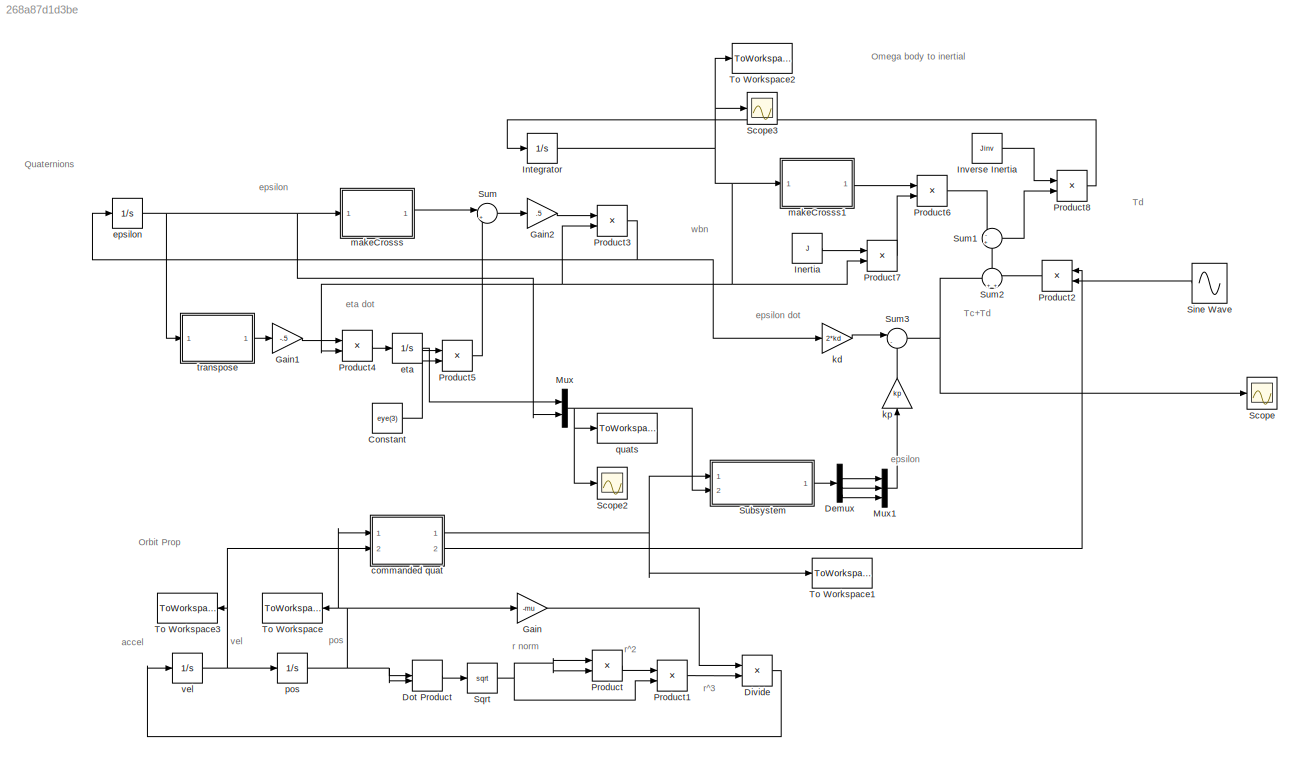
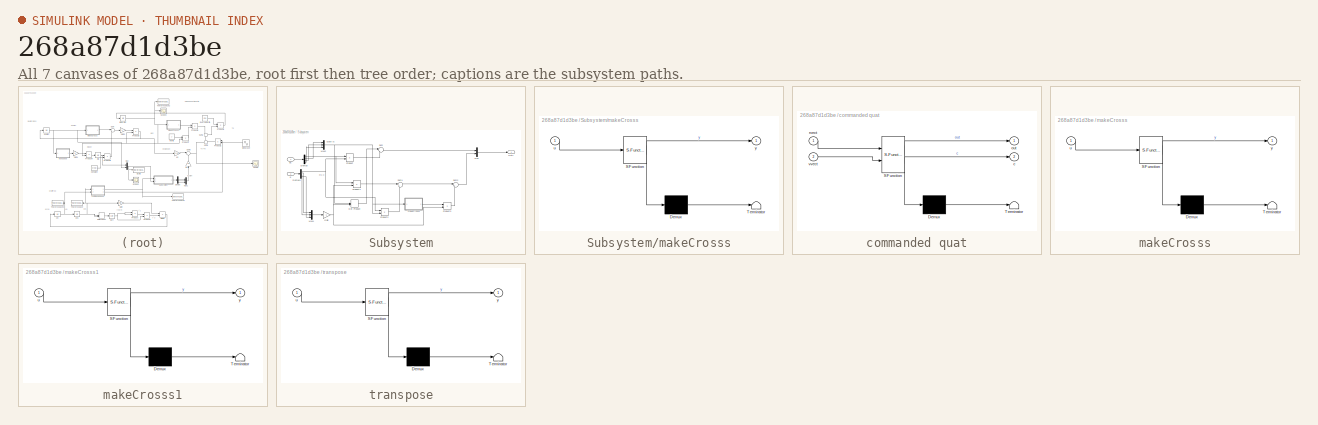
[diagram: thumbnail index - all 7 canvases of the model, root first then tree order]
MODEL slx_268a87d1d3be
KIND model
CONFIG AbsTol = 1e-8
CONFIG FixedStep = auto
CONFIG MaxStep = auto
CONFIG MinStep = auto
CONFIG RelTol = 1e-8
CONFIG SampleTimeConstraint = Unconstrained
CONFIG Solver = ode45
CONFIG SolverMode = Auto
CONFIG SolverName = ode45
CONFIG StartTime = 0.0
CONFIG StopTime = tprop
BLOCK [Constant] Constant
  Value = eye(3)
BLOCK [Demux] Demux
  DisplayOption = bar
  Ports = [1, 4]
BLOCK [Product] Divide
  InputSameDT = off
  Inputs = */
  OutDataTypeStr = Inherit: Inherit via internal rule
  Ports = [2, 1]
  RndMeth = Floor
  SaturateOnIntegerOverflow = off
BLOCK [DotProduct] Dot Product
  OutDataTypeStr = Inherit: Inherit via internal rule
BLOCK [Gain] Gain
  Gain = -mu
  OutDataTypeStr = Inherit: Inherit via internal rule
  ParamDataTypeStr = Inherit: Inherit via internal rule
  SaturateOnIntegerOverflow = off
BLOCK [Gain] Gain1
  Gain = -.5
  OutDataTypeStr = Inherit: Inherit via internal rule
  ParamDataTypeStr = Inherit: Inherit via internal rule
  SaturateOnIntegerOverflow = off
BLOCK [Gain] Gain2
  Gain = .5
  OutDataTypeStr = Inherit: Inherit via internal rule
  ParamDataTypeStr = Inherit: Inherit via internal rule
  SaturateOnIntegerOverflow = off
BLOCK [Constant] Inertia
  Value = J
BLOCK [Integrator] Integrator
  InitialCondition = wbn0
  Ports = [1, 1]
BLOCK [Constant] Inverse Inertia
  Value = Jinv
BLOCK [Mux] Mux
  DisplayOption = bar
  Inputs = 2
  Ports = [2, 1]
BLOCK [Mux] Mux1
  DisplayOption = bar
  Inputs = 3
  Ports = [3, 1]
BLOCK [Product] Product
  InputSameDT = off
  OutDataTypeStr = Inherit: Inherit via internal rule
  Ports = [2, 1]
  RndMeth = Floor
  SaturateOnIntegerOverflow = off
BLOCK [Product] Product1
  InputSameDT = off
  OutDataTypeStr = Inherit: Inherit via internal rule
  Ports = [2, 1]
  RndMeth = Floor
  SaturateOnIntegerOverflow = off
BLOCK [Product] Product2
  InputSameDT = off
  Multiplication = Matrix(*)
  OutDataTypeStr = Inherit: Inherit via internal rule
  Ports = [2, 1]
  RndMeth = Floor
  SaturateOnIntegerOverflow = off
BLOCK [Product] Product3
  InputSameDT = off
  Multiplication = Matrix(*)
  OutDataTypeStr = Inherit: Inherit via internal rule
  Ports = [2, 1]
  RndMeth = Floor
  SaturateOnIntegerOverflow = off
BLOCK [Product] Product4
  InputSameDT = off
  Multiplication = Matrix(*)
  OutDataTypeStr = Inherit: Inherit via internal rule
  Ports = [2, 1]
  RndMeth = Floor
  SaturateOnIntegerOverflow = off
BLOCK [Product] Product5
  InputSameDT = off
  OutDataTypeStr = Inherit: Inherit via internal rule
  Ports = [2, 1]
  RndMeth = Floor
  SaturateOnIntegerOverflow = off
BLOCK [Product] Product6
  InputSameDT = off
  Multiplication = Matrix(*)
  OutDataTypeStr = Inherit: Inherit via internal rule
  Ports = [2, 1]
  RndMeth = Floor
  SaturateOnIntegerOverflow = off
BLOCK [Product] Product7
  InputSameDT = off
  Multiplication = Matrix(*)
  OutDataTypeStr = Inherit: Inherit via internal rule
  Ports = [2, 1]
  RndMeth = Floor
  SaturateOnIntegerOverflow = off
BLOCK [Product] Product8
  InputSameDT = off
  Multiplication = Matrix(*)
  OutDataTypeStr = Inherit: Inherit via internal rule
  Ports = [2, 1]
  RndMeth = Floor
  SaturateOnIntegerOverflow = off
BLOCK [Scope] Scope
  Ports = [1]
  ScopeSpecificationString = Simulink.scopes.TimeScopeBlockCfg('CurrentConfiguration', extmgr.ConfigurationSet(extmgr.Configuration('Core','General UI',true),extmgr.Configuration('Core','Source UI',true),extmgr.Configuration('Sources','WiredSimulink',true,'DataLoggingVariableName','ScopeData1','DataLoggingLimitDataPoints',true,'DataLoggingSaveFormat','Array','DataLoggingDecimation','1','DataLoggingDecimateData',true),extmgr.C...<+1585ch>
BLOCK [Scope] Scope2
  Ports = [1]
  ScopeSpecificationString = Simulink.scopes.TimeScopeBlockCfg('CurrentConfiguration', extmgr.ConfigurationSet(extmgr.Configuration('Core','General UI',true),extmgr.Configuration('Core','Source UI',true),extmgr.Configuration('Sources','WiredSimulink',true,'DataLoggingVariableName','ScopeData1','DataLoggingLimitDataPoints',true,'DataLoggingSaveFormat','Array','DataLoggingDecimation','1','DataLoggingDecimateData',true),extmgr.C...<+1596ch>
BLOCK [Scope] Scope3
  Ports = [1]
  ScopeSpecificationString = Simulink.scopes.TimeScopeBlockCfg('CurrentConfiguration', extmgr.ConfigurationSet(extmgr.Configuration('Core','General UI',true),extmgr.Configuration('Core','Source UI',true),extmgr.Configuration('Sources','WiredSimulink',true,'DataLoggingVariableName','ScopeData2'),extmgr.Configuration('Visuals','Time Domain',true,'SerializedDisplays',{struct('MinYLimReal','0.00316','MaxYLimReal','0.17194','YLabe...<+1472ch>
BLOCK [Sin] Sine Wave
  Amplitude = [0; 5e-7; 0]
  Frequency = 3*n
  Ports = [0, 1]
  SampleTime = 0
BLOCK [Sqrt] Sqrt
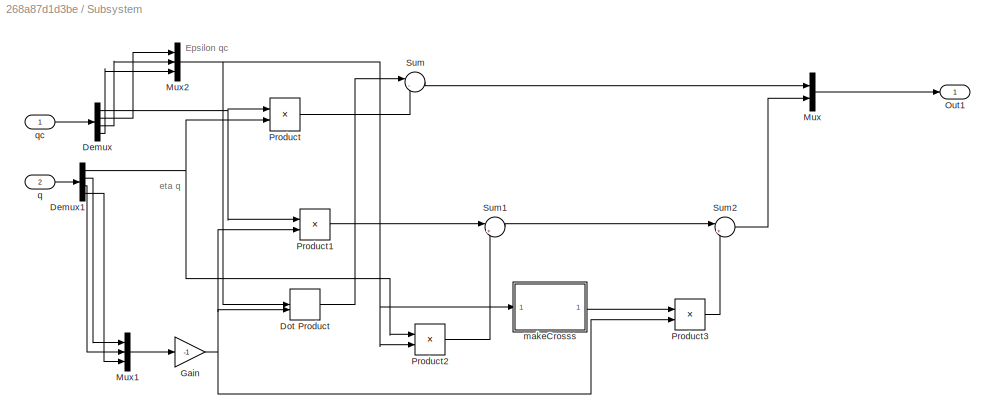
BLOCK [SubSystem] Subsystem
  Ports = [2, 1]
  RequestExecContextInheritance = off
  Variant = off
BLOCK [Demux] Subsystem/Demux
  DisplayOption = bar
  Ports = [1, 4]
BLOCK [Demux] Subsystem/Demux1
  DisplayOption = bar
  Ports = [1, 4]
BLOCK [DotProduct] Subsystem/Dot Product
  OutDataTypeStr = Inherit: Inherit via internal rule
BLOCK [Gain] Subsystem/Gain
  Gain = -1
  OutDataTypeStr = Inherit: Inherit via internal rule
  ParamDataTypeStr = Inherit: Inherit via internal rule
  SaturateOnIntegerOverflow = off
BLOCK [Mux] Subsystem/Mux
  DisplayOption = bar
  Inputs = 2
  Ports = [2, 1]
BLOCK [Mux] Subsystem/Mux1
  DisplayOption = bar
  Inputs = 3
  Ports = [3, 1]
BLOCK [Mux] Subsystem/Mux2
  DisplayOption = bar
  Inputs = 3
  Ports = [3, 1]
BLOCK [Outport] Subsystem/Out1
  IconDisplay = Port number
BLOCK [Product] Subsystem/Product
  InputSameDT = off
  OutDataTypeStr = Inherit: Inherit via internal rule
  Ports = [2, 1]
  RndMeth = Floor
  SaturateOnIntegerOverflow = off
BLOCK [Product] Subsystem/Product1
  InputSameDT = off
  OutDataTypeStr = Inherit: Inherit via internal rule
  Ports = [2, 1]
  RndMeth = Floor
  SaturateOnIntegerOverflow = off
BLOCK [Product] Subsystem/Product2
  InputSameDT = off
  OutDataTypeStr = Inherit: Inherit via internal rule
  Ports = [2, 1]
  RndMeth = Floor
  SaturateOnIntegerOverflow = off
BLOCK [Product] Subsystem/Product3
  InputSameDT = off
  Multiplication = Matrix(*)
  OutDataTypeStr = Inherit: Inherit via internal rule
  Ports = [2, 1]
  RndMeth = Floor
  SaturateOnIntegerOverflow = off
BLOCK [Sum] Subsystem/Sum
  IconShape = round
  InputSameDT = off
  Inputs = |-+
  OutDataTypeStr = Inherit: Inherit via internal rule
  Ports = [2, 1]
  SaturateOnIntegerOverflow = off
BLOCK [Sum] Subsystem/Sum1
  IconShape = round
  InputSameDT = off
  Inputs = |++
  OutDataTypeStr = Inherit: Inherit via internal rule
  Ports = [2, 1]
  SaturateOnIntegerOverflow = off
BLOCK [Sum] Subsystem/Sum2
  IconShape = round
  InputSameDT = off
  Inputs = |++
  OutDataTypeStr = Inherit: Inherit via internal rule
  Ports = [2, 1]
  SaturateOnIntegerOverflow = off
BLOCK [SubSystem] Subsystem/makeCrosss
  ErrorFcn = Stateflow.Translate.translate
  PermitHierarchicalResolution = ExplicitOnly
  Ports = [1, 1]
  RequestExecContextInheritance = off
  SFBlockType = MATLAB Function
  TreatAsAtomicUnit = on
  Variant = off
BLOCK [Demux] Subsystem/makeCrosss/ Demux 
  Outputs = 1
  Ports = [1, 1]
BLOCK [S-Function] Subsystem/makeCrosss/ SFunction 
  EnableBusSupport = on
  FunctionName = sf_sfun
  PortCounts = [1 2]
  Ports = [1, 2]
  SFunctionDeploymentMode = off
  Tag = Stateflow S-Function satPropWThrusterControlLinear 2
BLOCK [Terminator] Subsystem/makeCrosss/ Terminator 
BLOCK [Inport] Subsystem/makeCrosss/u
  IconDisplay = Port number
BLOCK [Outport] Subsystem/makeCrosss/y
  IconDisplay = Port number
BLOCK [Inport] Subsystem/q
  IconDisplay = Port number
  Port = 2
BLOCK [Inport] Subsystem/qc
  IconDisplay = Port number
BLOCK [Sum] Sum
  IconShape = round
  InputSameDT = off
  Inputs = |++
  OutDataTypeStr = Inherit: Inherit via internal rule
  Ports = [2, 1]
  SaturateOnIntegerOverflow = off
BLOCK [Sum] Sum1
  IconShape = round
  InputSameDT = off
  Inputs = -+
  OutDataTypeStr = Inherit: Inherit via internal rule
  Ports = [2, 1]
  SaturateOnIntegerOverflow = off
BLOCK [Sum] Sum2
  IconShape = round
  InputSameDT = off
  OutDataTypeStr = Inherit: Inherit via internal rule
  Ports = [2, 1]
  SaturateOnIntegerOverflow = off
BLOCK [Sum] Sum3
  IconShape = round
  InputSameDT = off
  Inputs = |--
  OutDataTypeStr = Inherit: Inherit via internal rule
  Ports = [2, 1]
  SaturateOnIntegerOverflow = off
BLOCK [ToWorkspace] To Workspace
  FixptAsFi = on
  MaxDataPoints = inf
  Ports = [1]
  SampleTime = -1
  Save2DSignal = 3-D array (concatenate along third dimension)
  SaveFormat = Timeseries
  VariableName = pos
BLOCK [ToWorkspace] To Workspace1
  FixptAsFi = on
  MaxDataPoints = inf
  Ports = [1]
  SampleTime = -1
  Save2DSignal = 3-D array (concatenate along third dimension)
  SaveFormat = Timeseries
  VariableName = q_command
BLOCK [ToWorkspace] To Workspace2
  FixptAsFi = on
  MaxDataPoints = inf
  Ports = [1]
  SampleTime = -1
  Save2DSignal = 3-D array (concatenate along third dimension)
  SaveFormat = Timeseries
  VariableName = wbn
BLOCK [ToWorkspace] To Workspace3
  FixptAsFi = on
  MaxDataPoints = inf
  Ports = [1]
  SampleTime = -1
  Save2DSignal = 3-D array (concatenate along third dimension)
  SaveFormat = Timeseries
  VariableName = vel
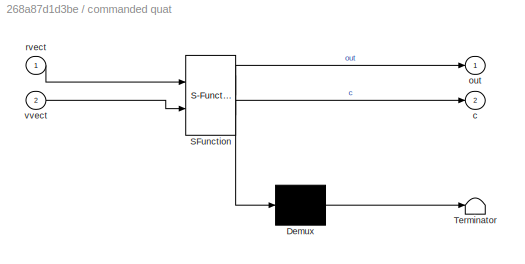
BLOCK [SubSystem] commanded quat
  ErrorFcn = Stateflow.Translate.translate
  PermitHierarchicalResolution = ExplicitOnly
  Ports = [2, 2]
  RequestExecContextInheritance = off
  SFBlockType = MATLAB Function
  TreatAsAtomicUnit = on
  Variant = off
BLOCK [Demux] commanded quat/ Demux 
  Outputs = 1
  Ports = [1, 1]
BLOCK [S-Function] commanded quat/ SFunction 
  EnableBusSupport = on
  FunctionName = sf_sfun
  PortCounts = [2 3]
  Ports = [2, 3]
  SFunctionDeploymentMode = off
  Tag = Stateflow S-Function satPropWThrusterControlLinear 5
BLOCK [Terminator] commanded quat/ Terminator 
BLOCK [Outport] commanded quat/c
  IconDisplay = Port number
  Port = 2
BLOCK [Outport] commanded quat/out
  IconDisplay = Port number
BLOCK [Inport] commanded quat/rvect
  IconDisplay = Port number
BLOCK [Inport] commanded quat/vvect
  IconDisplay = Port number
  Port = 2
BLOCK [Integrator] epsilon
  InitialCondition = epsilon0
  Ports = [1, 1]
BLOCK [Integrator] eta
  InitialCondition = eta0
  Ports = [1, 1]
BLOCK [Gain] kd
  Gain = 2*kd
  Multiplication = Matrix(K*u) (u vector)
  OutDataTypeStr = Inherit: Inherit via internal rule
  ParamDataTypeStr = Inherit: Inherit via internal rule
  SaturateOnIntegerOverflow = off
BLOCK [Gain] kp
  Gain = kp
  Multiplication = Matrix(K*u) (u vector)
  OutDataTypeStr = Inherit: Inherit via internal rule
  ParamDataTypeStr = Inherit: Inherit via internal rule
  SaturateOnIntegerOverflow = off
BLOCK [SubSystem] makeCrosss
  ErrorFcn = Stateflow.Translate.translate
  PermitHierarchicalResolution = ExplicitOnly
  Ports = [1, 1]
  RequestExecContextInheritance = off
  SFBlockType = MATLAB Function
  TreatAsAtomicUnit = on
  Variant = off
BLOCK [Demux] makeCrosss/ Demux 
  Outputs = 1
  Ports = [1, 1]
BLOCK [S-Function] makeCrosss/ SFunction 
  EnableBusSupport = on
  FunctionName = sf_sfun
  PortCounts = [1 2]
  Ports = [1, 2]
  SFunctionDeploymentMode = off
  Tag = Stateflow S-Function satPropWThrusterControlLinear 1
BLOCK [Terminator] makeCrosss/ Terminator 
BLOCK [Inport] makeCrosss/u
  IconDisplay = Port number
BLOCK [Outport] makeCrosss/y
  IconDisplay = Port number
BLOCK [SubSystem] makeCrosss1
  ErrorFcn = Stateflow.Translate.translate
  PermitHierarchicalResolution = ExplicitOnly
  Ports = [1, 1]
  RequestExecContextInheritance = off
  SFBlockType = MATLAB Function
  TreatAsAtomicUnit = on
  Variant = off
BLOCK [Demux] makeCrosss1/ Demux 
  Outputs = 1
  Ports = [1, 1]
BLOCK [S-Function] makeCrosss1/ SFunction 
  EnableBusSupport = on
  FunctionName = sf_sfun
  PortCounts = [1 2]
  Ports = [1, 2]
  SFunctionDeploymentMode = off
  Tag = Stateflow S-Function satPropWThrusterControlLinear 4
BLOCK [Terminator] makeCrosss1/ Terminator 
BLOCK [Inport] makeCrosss1/u
  IconDisplay = Port number
BLOCK [Outport] makeCrosss1/y
  IconDisplay = Port number
BLOCK [Integrator] pos
  InitialCondition = rvect
  Ports = [1, 1]
BLOCK [ToWorkspace] quats
  FixptAsFi = on
  MaxDataPoints = inf
  Ports = [1]
  SampleTime = -1
  Save2DSignal = 3-D array (concatenate along third dimension)
  SaveFormat = Timeseries
  VariableName = quat
BLOCK [SubSystem] transpose
  ErrorFcn = Stateflow.Translate.translate
  PermitHierarchicalResolution = ExplicitOnly
  Ports = [1, 1]
  RequestExecContextInheritance = off
  SFBlockType = MATLAB Function
  TreatAsAtomicUnit = on
  Variant = off
BLOCK [Demux] transpose/ Demux 
  Outputs = 1
  Ports = [1, 1]
BLOCK [S-Function] transpose/ SFunction 
  EnableBusSupport = on
  FunctionName = sf_sfun
  PortCounts = [1 2]
  Ports = [1, 2]
  SFunctionDeploymentMode = off
  Tag = Stateflow S-Function satPropWThrusterControlLinear 3
BLOCK [Terminator] transpose/ Terminator 
BLOCK [Inport] transpose/u
  IconDisplay = Port number
BLOCK [Outport] transpose/y
  IconDisplay = Port number
BLOCK [Integrator] vel
  InitialCondition = vvect
  Ports = [1, 1]
ANNOTATION (root): Omega body to inertial
ANNOTATION (root): Orbit Prop
ANNOTATION (root): Quaternions
ANNOTATION (root): Td
ANNOTATION (root): Tc+Td
ANNOTATION (root): accel
ANNOTATION (root): epsilon
ANNOTATION (root): epsilon dot
ANNOTATION (root): eta dot
ANNOTATION (root): pos
ANNOTATION (root): r norm
ANNOTATION (root): r^2
ANNOTATION (root): r^3
ANNOTATION (root): vel
ANNOTATION (root): wbn
ANNOTATION Subsystem: Epsilon qc
ANNOTATION Subsystem: eta q
LINE Constant:1 -> Product5:2
LINE Demux:2 -> Mux1:1
LINE Demux:3 -> Mux1:2
LINE Demux:4 -> Mux1:3
LINE Divide:1 -> vel:1
LINE Dot Product:1 -> Sqrt:1
LINE Gain1:1 -> Product4:1
LINE Gain2:1 -> Product3:1
LINE Gain:1 -> Divide:1
LINE Inertia:1 -> Product7:1
NET Integrator:1 -> Product3:2, Product4:2, Product7:2, Scope3:1, To Workspace2:1, makeCrosss1:1
LINE Inverse Inertia:1 -> Product8:1
LINE Mux1:1 -> kp:1
NET Mux:1 -> Scope2:1, Subsystem:2, quats:1
LINE Product1:1 -> Divide:2
LINE Product2:1 -> Sum2:2
NET Product3:1 -> epsilon:1, kd:1
LINE Product4:1 -> eta:1
LINE Product5:1 -> Sum:2
LINE Product6:1 -> Sum1:1
LINE Product7:1 -> Product6:2
LINE Product8:1 -> Integrator:1
LINE Product:1 -> Product1:1
LINE Sine Wave:1 -> Product2:2
NET Sqrt:1 -> Product1:2, Product:1, Product:2
NET Subsystem/Demux1:1 -> Subsystem/Product2:1, Subsystem/Product:2
LINE Subsystem/Demux1:2 -> Subsystem/Mux1:1
LINE Subsystem/Demux1:3 -> Subsystem/Mux1:2
LINE Subsystem/Demux1:4 -> Subsystem/Mux1:3
NET Subsystem/Demux:1 -> Subsystem/Product1:1, Subsystem/Product:1
LINE Subsystem/Demux:2 -> Subsystem/Mux2:1
LINE Subsystem/Demux:3 -> Subsystem/Mux2:2
LINE Subsystem/Demux:4 -> Subsystem/Mux2:3
LINE Subsystem/Dot Product:1 -> Subsystem/Sum:1
NET Subsystem/Gain:1 -> Subsystem/Dot Product:2, Subsystem/Product1:2, Subsystem/Product3:2
LINE Subsystem/Mux1:1 -> Subsystem/Gain:1
NET Subsystem/Mux2:1 -> Subsystem/Dot Product:1, Subsystem/Product2:2, Subsystem/makeCrosss:1
LINE Subsystem/Mux:1 -> Subsystem/Out1:1
LINE Subsystem/Product1:1 -> Subsystem/Sum1:1
LINE Subsystem/Product2:1 -> Subsystem/Sum1:2
LINE Subsystem/Product3:1 -> Subsystem/Sum2:2
LINE Subsystem/Product:1 -> Subsystem/Sum:2
LINE Subsystem/Sum1:1 -> Subsystem/Sum2:1
LINE Subsystem/Sum2:1 -> Subsystem/Mux:2
LINE Subsystem/Sum:1 -> Subsystem/Mux:1
LINE Subsystem/makeCrosss:1 -> Subsystem/Product3:1
LINE Subsystem/q:1 -> Subsystem/Demux1:1
LINE Subsystem/qc:1 -> Subsystem/Demux:1
LINE Subsystem:1 -> Demux:1
LINE Sum1:1 -> Product8:2
LINE Sum2:1 -> Sum1:2
NET Sum3:1 -> Scope:1, Sum2:1
LINE Sum:1 -> Gain2:1
NET commanded quat:1 -> Subsystem:1, To Workspace1:1
LINE commanded quat:2 -> Product2:1
NET epsilon:1 -> Mux:2, makeCrosss:1, transpose:1
NET eta:1 -> Mux:1, Product5:1
LINE kd:1 -> Sum3:1
LINE kp:1 -> Sum3:2
LINE makeCrosss1:1 -> Product6:1
LINE makeCrosss:1 -> Sum:1
NET pos:1 -> Dot Product:1, Dot Product:2, Gain:1, To Workspace:1, commanded quat:1
LINE transpose:1 -> Gain1:1
NET vel:1 -> To Workspace3:1, commanded quat:2, pos:1
note: NET lines group one-source signal fan-out (src -> all destinations, sorted); 1:1 wires keep LINE
CHART makeCrosss states=1 transitions=1
  STATE_LABEL 'eML_blk_kernel()'
  STATE_LABEL 'SCRIPT:\nfunction y = fcn(u)\n%#codegen\nEx = u(1);\nEy = u(2);\nEz = u(3);\n\ny = [0 -Ez Ey; Ez 0 -Ex; -Ey Ex 0];'
CHART Subsystem/makeCrosss states=1 transitions=1
  STATE_LABEL 'eML_blk_kernel()'
  STATE_LABEL 'SCRIPT:\nfunction y = fcn(u)\n%#codegen\nEx = u(1);\nEy = u(2);\nEz = u(3);\n\ny = [0 -Ez Ey; Ez 0 -Ex; -Ey Ex 0];'
CHART transpose states=1 transitions=1
  STATE_LABEL 'eML_blk_kernel()'
  STATE_LABEL "SCRIPT:\nfunction y = fcn(u)\n%#codegen\n\ny = u';"
CHART makeCrosss1 states=1 transitions=1
  STATE_LABEL 'eML_blk_kernel()'
  STATE_LABEL 'SCRIPT:\nfunction y = fcn(u)\n%#codegen\nEx = u(1);\nEy = u(2);\nEz = u(3);\n\ny = [0 -Ez Ey; Ez 0 -Ex; -Ey Ex 0];'
CHART commanded quat states=1 transitions=1
  STATE_LABEL 'eML_blk_kernel()'
  STATE_LABEL 'SCRIPT:\nfunction [out, c]= fcn(rvect, vvect)\n%#codegen\nh_a = cross(rvect,vvect);\nk_hat = -rvect/norm(rvect);\nj_hat = -h_a/norm(h_a);\ni_hat = cross(j_hat, k_hat);\nx = [1 0 0];\ny = [0 1 0];\nz = [0 0 1];\nc = [dot(x, i_hat) dot(x, j_hat) dot(x, k_hat);\n       dot(y, i_hat) dot(y, j_hat) dot(y, k_hat);\n       dot(z, i_hat) dot(z, j_hat) dot(z, k_hat)];\nout = DCM2quat(c);'
